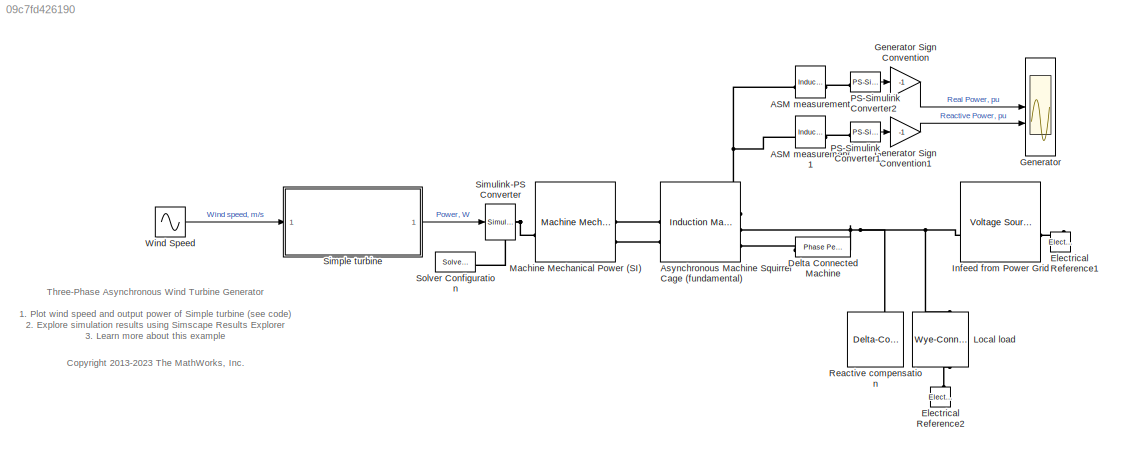
MODEL slx_09c7fd426190
KIND model
CONFIG AbsTol = auto
CONFIG EnableMultiTasking = on
CONFIG FixedStep = auto
CONFIG MaxStep = 1e-4
CONFIG MinStep = auto
CONFIG PreLoadFcn = SRated = 150e3; % V*A\nVRated = 440; % V\nFRated = 60; % Hz\n\nQNominal = sin(acos(0.8))*SRated;\nQPerPhase = QNominal / 3;\n\nIPerPhase = QPerPhase/VRated;\nXc = VRated/IPerPhase;\nreactiveCompensationCapacitance = 1/(2*pi*FRated*Xc);\n\nclear( 'QNominal', 'QPerPhase', 'IPerPhase', 'Xc' );\n\n
CONFIG RelTol = 1e-3
CONFIG SampleTimeConstraint = Unconstrained
CONFIG SolverName = ode23t
CONFIG StartTime = 0.0
CONFIG StopTime = 60
BLOCK [Reference] ASM measurement  REF=ee_lib/Electromechanical/Asynchronous/Induction Machine
Measurement
  SourceBlock = ee_lib/Electromechanical/Asynchronous/Induction Machine\nMeasurement
  SourceType = Induction Machine\nMeasurement
BLOCK [Reference] ASM measurement1  REF=ee_lib/Electromechanical/Asynchronous/Induction Machine
Measurement
  SourceBlock = ee_lib/Electromechanical/Asynchronous/Induction Machine\nMeasurement
  SourceType = Induction Machine\nMeasurement
BLOCK [Reference] Asynchronous Machine Squirrel Cage (fundamental)  REF=ee_lib/Electromechanical/Asynchronous/Induction Machine
Squirrel Cage
  SourceBlock = ee_lib/Electromechanical/Asynchronous/Induction Machine\nSquirrel Cage
  SourceType = Induction Machine\nSquirrel Cage
BLOCK [Reference] Delta Connected Machine  REF=ee_lib/Connectors &
References/Phase Permute
  SourceBlock = ee_lib/Connectors &\nReferences/Phase Permute
  SourceType = Phase Permute
BLOCK [Reference] Electrical Reference1  REF=fl_lib/Electrical/Electrical Elements/Electrical Reference
  NameLocation = right
  SourceBlock = fl_lib/Electrical/Electrical Elements/Electrical Reference
  SourceType = Electrical Reference
BLOCK [Reference] Electrical Reference2  REF=fl_lib/Electrical/Electrical Elements/Electrical Reference
  NameLocation = right
  SourceBlock = fl_lib/Electrical/Electrical Elements/Electrical Reference
  SourceType = Electrical Reference
BLOCK [Scope] Generator
  Floating = off
  NumInputPorts = 2
  ScopeSpecificationString = Simulink.scopes.TimeScopeBlockCfg('CurrentConfiguration', extmgr.ConfigurationSet(extmgr.Configuration('Core','General UI',true),extmgr.Configuration('Core','Source UI',true),extmgr.Configuration('Sources','WiredSimulink',true,'DataLoggingVariableName','ScopeData2','DataLoggingSaveFormat','Array','DataLoggingDecimation','1','DataLoggingDecimateData',true),extmgr.Configuration('Visuals','Time Domai...<+2393ch>
BLOCK [Gain] Generator Sign Convention
  Gain = -1
BLOCK [Gain] Generator Sign Convention1
  Gain = -1
BLOCK [Reference] Infeed from Power Grid  REF=ee_lib/Sources/Voltage
Source
(Three-Phase)
  SourceBlock = ee_lib/Sources/Voltage\nSource\n(Three-Phase)
  SourceType = Voltage\nSource\n(Three-Phase)
BLOCK [Reference] Local load  REF=ee_lib/Passive/RLC Assemblies/Wye-Connected Load
  NameLocation = right
  SourceBlock = ee_lib/Passive/RLC Assemblies/Wye-Connected Load
  SourceType = Wye-Connected Load
BLOCK [Reference] Machine Mechanical Power (SI)  REF=ee_lib/Electromechanical/Mechanical/Machine Mechanical
Power
  SourceBlock = ee_lib/Electromechanical/Mechanical/Machine Mechanical\nPower
  SourceType = Machine Mechanical\nPower
BLOCK [Reference] PS-Simulink Converter1  REF=nesl_utility/PS-Simulink
Converter
  SourceBlock = nesl_utility/PS-Simulink\nConverter
  SourceType = PS-Simulink\nConverter
BLOCK [Reference] PS-Simulink Converter2  REF=nesl_utility/PS-Simulink
Converter
  SourceBlock = nesl_utility/PS-Simulink\nConverter
  SourceType = PS-Simulink\nConverter
BLOCK [Reference] Reactive compensation  REF=ee_lib/Passive/RLC Assemblies/Delta-Connected Load
  NameLocation = left
  SourceBlock = ee_lib/Passive/RLC Assemblies/Delta-Connected Load
  SourceType = Delta-Connected Load
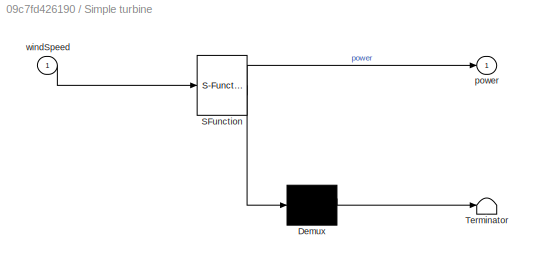
BLOCK [SubSystem] Simple turbine
  ErrorFcn = Stateflow.Translate.translate
  PermitHierarchicalResolution = ExplicitOnly
  SFBlockType = MATLAB Function
  TreatAsAtomicUnit = on
BLOCK [Demux] Simple turbine/ Demux 
  Outputs = 1
BLOCK [S-Function] Simple turbine/ SFunction 
  EnableBusSupport = off
  FunctionName = sf_sfun
  Parameters = cutInSpeed,cutOutSpeed,ratedOutputPower,ratedOutputSpeed
  PortCounts = [1 2]
  SFcnIsStateOwnerBlock = off
  SFunctionDeploymentMode = off
  Tag = Stateflow S-Function 2
BLOCK [Terminator] Simple turbine/ Terminator 
BLOCK [Outport] Simple turbine/power
  VectorParamsAs1DForOutWhenUnconnected = off
BLOCK [Inport] Simple turbine/windSpeed
BLOCK [Reference] Simulink-PS Converter  REF=nesl_utility/Simulink-PS
Converter
  SourceBlock = nesl_utility/Simulink-PS\nConverter
  SourceType = Simulink-PS\nConverter
BLOCK [Reference] Solver Configuration  REF=nesl_utility/Solver
Configuration
  SourceBlock = nesl_utility/Solver\nConfiguration
  SourceType = Solver\nConfiguration
BLOCK [Sin] Wind Speed
  Amplitude = 25
  Frequency = pi/60
  SampleTime = 0
ANNOTATION (root): 1. Plot wind speed and output power of Simple turbine ( see code ) 2. Explore simulation results using Simscape Results Explorer 3. Learn more about this example
ANNOTATION (root): <copyright redacted>
ANNOTATION (root): Three-Phase Asynchronous Wind Turbine Generator
LINE Generator Sign Convention1:1 -> Generator:2
LINE Generator Sign Convention:1 -> Generator:1
LINE PS-Simulink Converter1:1 -> Generator Sign Convention1:1
LINE PS-Simulink Converter2:1 -> Generator Sign Convention:1
LINE Simple turbine:1 -> Simulink-PS Converter:1
LINE Wind Speed:1 -> Simple turbine:1
PNET net1: ASM measurement1:LConn1 -- ASM measurement:LConn1 -- Asynchronous Machine Squirrel Cage (fundamental):RConn1
PLINE ASM measurement1:RConn1 -- PS-Simulink Converter1:LConn1
PLINE ASM measurement:RConn1 -- PS-Simulink Converter2:LConn1
PLINE Asynchronous Machine Squirrel Cage (fundamental):LConn1 -- Machine Mechanical Power (SI):RConn1
PLINE Asynchronous Machine Squirrel Cage (fundamental):LConn2 -- Machine Mechanical Power (SI):RConn2
PNET net2: Asynchronous Machine Squirrel Cage (fundamental):RConn2 -- Delta Connected Machine:LConn1 -- Infeed from Power Grid:RConn1 -- Local load:LConn1 -- Reactive compensation:LConn1
PLINE Asynchronous Machine Squirrel Cage (fundamental):RConn3 -- Delta Connected Machine:RConn1
PLINE Electrical Reference1:LConn1 -- Infeed from Power Grid:LConn1
PLINE Electrical Reference2:LConn1 -- Local load:RConn1
PNET net3: Machine Mechanical Power (SI):LConn1 -- Simulink-PS Converter:RConn1 -- Solver Configuration:RConn1
note: PNET lines group multi-terminal physical nets as a canonical sorted terminal list (undirected conserving connections); 2-terminal nets keep the pairwise PLINE form
CHART Simple turbine states=1 transitions=1
  STATE_LABEL 'eML_blk_kernel()'
  STATE_LABEL 'SCRIPT:\nfunction power = simpleTurbine( windSpeed, ratedOutputPower, cutInSpeed, ratedOutputSpeed, cutOutSpeed ) %#codegen\n%Simple Turbine\n% This function implements a simple power versus wind speed characteristic\n% to represent a wind turbine.\n%\n% Given an input of wind speed, m/s, the function outputs turbine power, W.\n%\n% The parameters must meet the following requirement:\n%\n% Cut-in speed < Ra...<+1217ch>'
CHART  states=0 transitions=0
